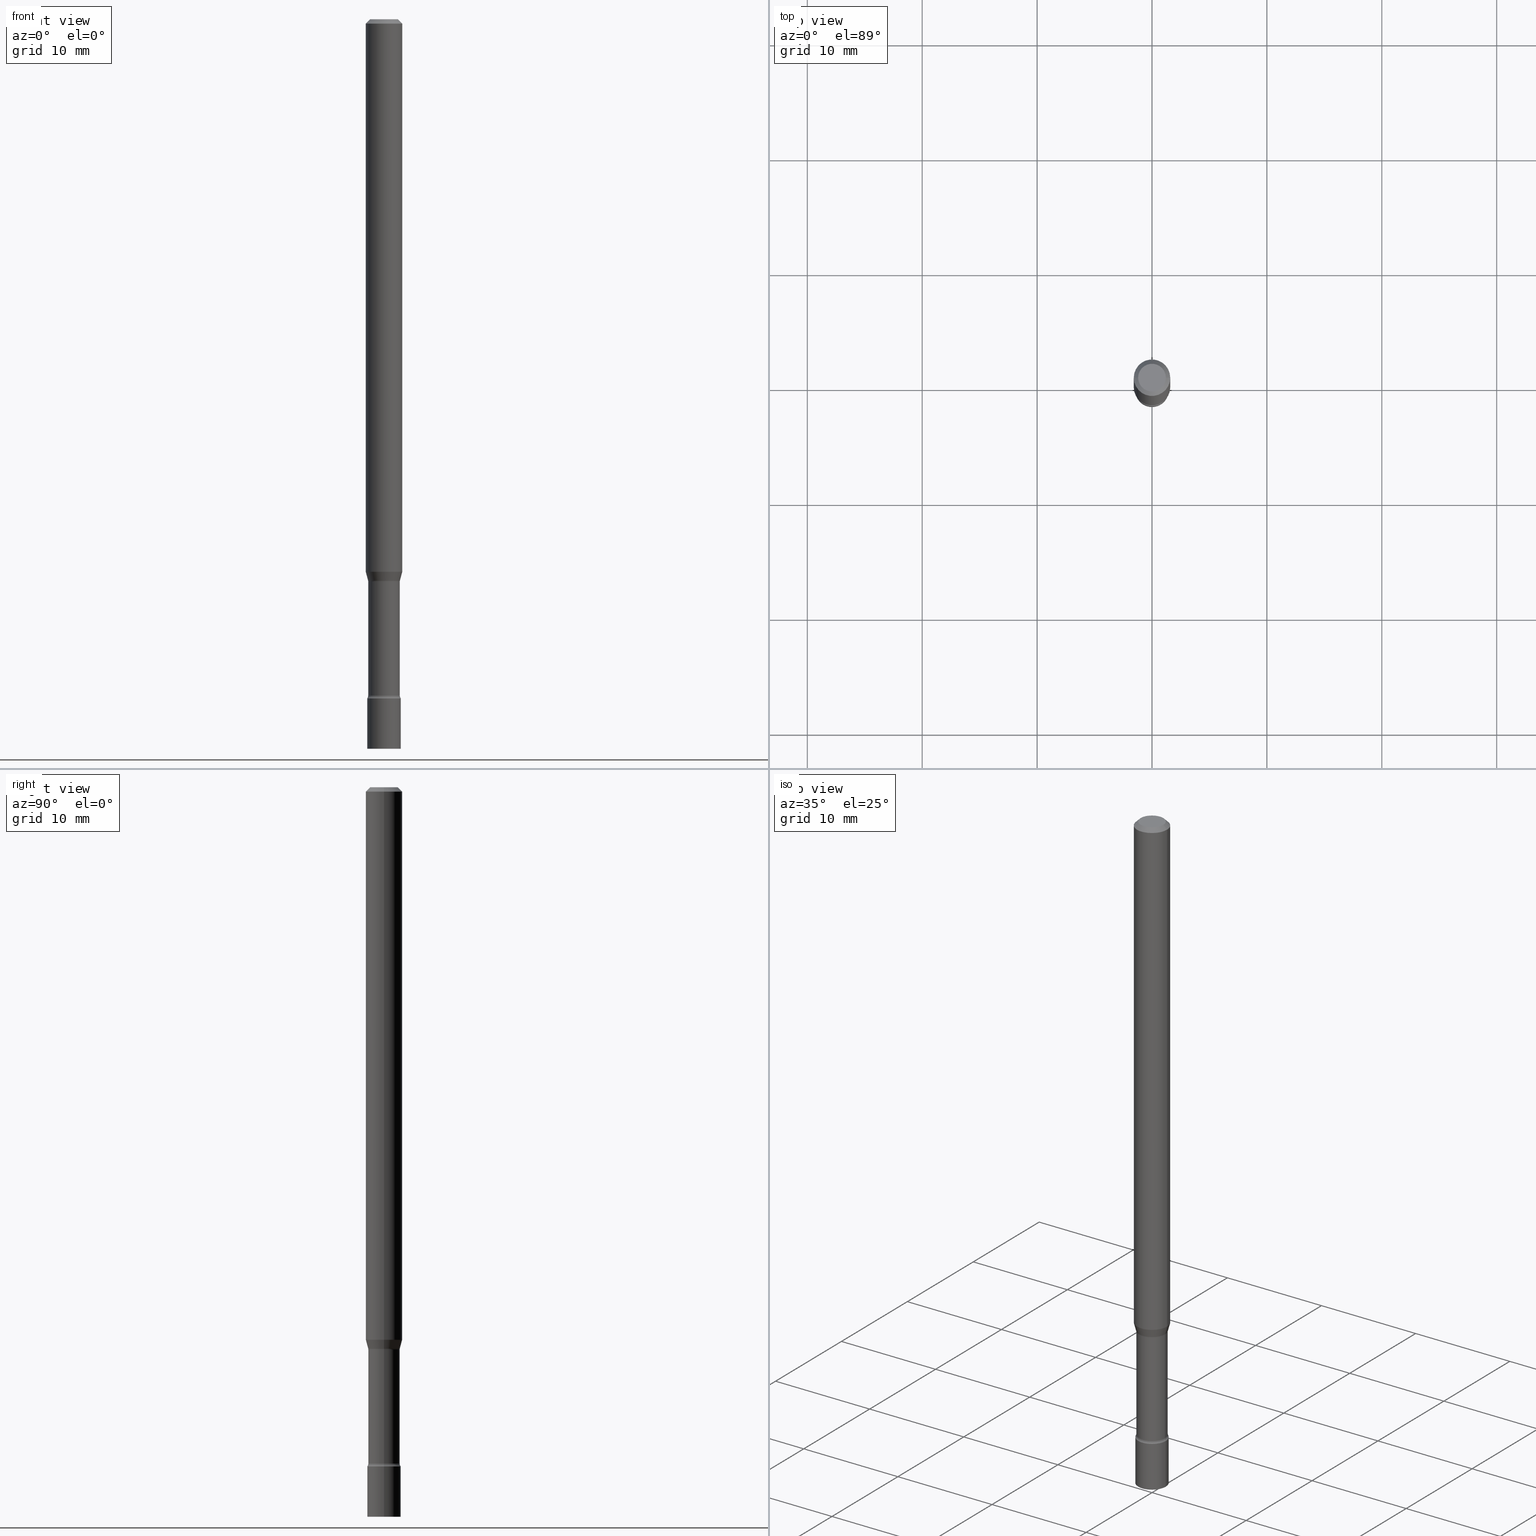
[diagram: canonical four-view strip — front | top / right | iso, engineering-drawing reading convention]
A machine part, canonical four-view strip (front | top / right | iso — engineering-drawing reading convention). The complete STEP part file that produces these views, byte-faithful:
ISO-10303-21;
HEADER;
FILE_DESCRIPTION (( 'STEP AP203' ),
    '1' );
FILE_NAME ('09775.STEP',
    '2024-03-09T01:58:50',
    ( '' ),
    ( '' ),
    'SwSTEP 2.0',
    'SolidWorks 2023',
    '' );
FILE_SCHEMA (( 'CONFIG_CONTROL_DESIGN' ));
ENDSEC;

DATA;
#1 = VERTEX_POINT ( 'NONE', #325 ) ;
#2 = AXIS2_PLACEMENT_3D ( 'NONE', #133, #139, #99 ) ;
#3 = DATE_AND_TIME ( #169, #301 ) ;
#4 = CC_DESIGN_APPROVAL ( #121, ( #246 ) ) ;
#5 = EDGE_LOOP ( 'NONE', ( #430, #248, #288, #510 ) ) ;
#6 = FACE_OUTER_BOUND ( 'NONE', #340, .T. ) ;
#7 = ORIENTED_EDGE ( 'NONE', *, *, #279, .F. ) ;
#8 = PERSON_AND_ORGANIZATION ( #491, #473 ) ;
#9 = COORDINATED_UNIVERSAL_TIME_OFFSET ( 5, 0, .BEHIND. ) ;
#10 = LOCAL_TIME ( 20, 58, 50.00000000000000000, #212 ) ;
#11 = CARTESIAN_POINT ( 'NONE',  ( 7.070806723891919892E-46, -1.009523804376275404E-31, -2.891391092786900929E-17 ) ) ;
#12 = DIRECTION ( 'NONE',  ( 1.000000000000000000, -6.982962677686269866E-15, 4.883557194083114022E-29 ) ) ;
#13 = DIRECTION ( 'NONE',  ( 1.000000000000000000, -6.982962677686265922E-15, 4.876176775795935793E-29 ) ) ;
#14 = PRODUCT ( '09775', '09775', '', ( #373 ) ) ;
#15 = APPROVAL_PERSON_ORGANIZATION ( #163, #376, #482 ) ;
#16 = CC_DESIGN_SECURITY_CLASSIFICATION ( #246, ( #136 ) ) ;
#17 = FACE_OUTER_BOUND ( 'NONE', #129, .T. ) ;
#18 = EDGE_CURVE ( 'NONE', #67, #1, #144, .T. ) ;
#19 = DIRECTION ( 'NONE',  ( 1.000000000000000000, -6.982962677686262766E-15, 0.000000000000000000 ) ) ;
#20 = DIRECTION ( 'NONE',  ( -1.000000000000000000, 6.982962677686265922E-15, -4.876176775795935793E-29 ) ) ;
#21 = ADVANCED_FACE ( 'NONE', ( #98 ), #456, .T. ) ;
#22 = DIRECTION ( 'NONE',  ( 1.000000000000000000, -6.982962677686266711E-15, 0.000000000000000000 ) ) ;
#23 = ORIENTED_EDGE ( 'NONE', *, *, #76, .F. ) ;
#24 = DIRECTION ( 'NONE',  ( -2.445468806185136597E-29, 3.491481338843145583E-15, 1.000000000000000000 ) ) ;
#25 = AXIS2_PLACEMENT_3D ( 'NONE', #285, #355, #168 ) ;
#26 = DIRECTION ( 'NONE',  ( 1.000000000000000000, -6.982962677686266711E-15, 0.000000000000000000 ) ) ;
#27 = AXIS2_PLACEMENT_3D ( 'NONE', #224, #372, #238 ) ;
#28 = PRODUCT_RELATED_PRODUCT_CATEGORY ( 'detail', '', ( #14 ) ) ;
#29 = ORIENTED_EDGE ( 'NONE', *, *, #300, .T. ) ;
#30 = CARTESIAN_POINT ( 'NONE',  ( 0.05749999999999998168, -8.526197429454959485E-15, -2.326999999999999957 ) ) ;
#31 = DIRECTION ( 'NONE',  ( -2.445468806185136597E-29, 3.491481338843145583E-15, 1.000000000000000000 ) ) ;
#32 = CARTESIAN_POINT ( 'NONE',  ( 4.015203539670214529E-16, 0.05749999999999127337, -2.500000000000000000 ) ) ;
#33 = ORIENTED_EDGE ( 'NONE', *, *, #18, .F. ) ;
#34 = ADVANCED_FACE ( 'NONE', ( #17 ), #183, .F. ) ;
#35 = EDGE_CURVE ( 'NONE', #359, #356, #108, .T. ) ;
#36 = CYLINDRICAL_SURFACE ( 'NONE', #308, 0.06250000000000000000 ) ;
#37 = AXIS2_PLACEMENT_3D ( 'NONE', #222, #464, #254 ) ;
#38 = CIRCLE ( 'NONE', #47, 0.05405000000000000082 ) ;
#39 = ORIENTED_EDGE ( 'NONE', *, *, #203, .T. ) ;
#40 = ADVANCED_FACE ( 'NONE', ( #492 ), #489, .F. ) ;
#41 = DIRECTION ( 'NONE',  ( 1.000000000000000000, -6.982962677686265922E-15, 4.883557194083113462E-29 ) ) ;
#42 = EDGE_LOOP ( 'NONE', ( #419, #201, #211, #402 ) ) ;
#43 = EDGE_CURVE ( 'NONE', #322, #349, #128, .T. ) ;
#44 = ORIENTED_EDGE ( 'NONE', *, *, #296, .F. ) ;
#45 = VERTEX_POINT ( 'NONE', #329 ) ;
#46 = VECTOR ( 'NONE', #505, 39.37007874015748143 ) ;
#47 = AXIS2_PLACEMENT_3D ( 'NONE', #107, #73, #26 ) ;
#48 = CARTESIAN_POINT ( 'NONE',  ( -0.05405000000000004939, -7.711663977217294376E-15, -2.317429341715430802 ) ) ;
#49 = ORIENTED_EDGE ( 'NONE', *, *, #490, .T. ) ;
#50 = DATE_AND_TIME ( #84, #79 ) ;
#51 = ORIENTED_EDGE ( 'NONE', *, *, #53, .F. ) ;
#52 = ADVANCED_FACE ( 'NONE', ( #409 ), #138, .T. ) ;
#53 = EDGE_CURVE ( 'NONE', #152, #205, #189, .T. ) ;
#54 = DIRECTION ( 'NONE',  ( 1.000000000000000000, -6.982962677686265922E-15, 4.876176775795935232E-29 ) ) ;
#55 = DATE_TIME_ROLE ( 'creation_date' ) ;
#56 = AXIS2_PLACEMENT_3D ( 'NONE', #125, #520, #358 ) ;
#57 = VECTOR ( 'NONE', #509, 39.37007874015748143 ) ;
#58 = DIRECTION ( 'NONE',  ( -2.445468806185136597E-29, 3.491481338843145583E-15, 1.000000000000000000 ) ) ;
#59 = FACE_OUTER_BOUND ( 'NONE', #5, .T. ) ;
#60 = PERSON_AND_ORGANIZATION_ROLE ( 'classification_officer' ) ;
#61 = EDGE_CURVE ( 'NONE', #45, #399, #435, .T. ) ;
#62 = DIRECTION ( 'NONE',  ( 1.000000000000000000, -6.982962677686266711E-15, 0.000000000000000000 ) ) ;
#63 = CIRCLE ( 'NONE', #251, 0.05750000000000000250 ) ;
#64 = CARTESIAN_POINT ( 'NONE',  ( 3.316907271900976096E-16, 0.04749999999999999362, -1.803023190589839165E-16 ) ) ;
#65 = DIRECTION ( 'NONE',  ( 1.000000000000000000, 0.000000000000000000, 0.000000000000000000 ) ) ;
#66 = EDGE_CURVE ( 'NONE', #205, #158, #269, .T. ) ;
#67 = VERTEX_POINT ( 'NONE', #381 ) ;
#68 = CYLINDRICAL_SURFACE ( 'NONE', #331, 0.06250000000000000000 ) ;
#69 = EDGE_CURVE ( 'NONE', #349, #265, #214, .T. ) ;
#70 = DIRECTION ( 'NONE',  ( 0.2588190451025204619, 1.565188264969629067E-15, 0.9659258262890684232 ) ) ;
#71 = AXIS2_PLACEMENT_3D ( 'NONE', #178, #140, #418 ) ;
#72 = CYLINDRICAL_SURFACE ( 'NONE', #369, 0.05405000000000002858 ) ;
#73 = DIRECTION ( 'NONE',  ( -2.445468806185136597E-29, 3.491481338843145583E-15, 1.000000000000000000 ) ) ;
#74 = ORIENTED_EDGE ( 'NONE', *, *, #18, .T. ) ;
#75 = LINE ( 'NONE', #113, #462 ) ;
#76 = EDGE_CURVE ( 'NONE', #356, #45, #100, .T. ) ;
#77 = DIRECTION ( 'NONE',  ( -2.445468806185136597E-29, 3.491481338843145583E-15, 1.000000000000000000 ) ) ;
#78 = FACE_OUTER_BOUND ( 'NONE', #444, .T. ) ;
#79 = LOCAL_TIME ( 20, 58, 50.00000000000000000, #488 ) ;
#80 = ORIENTED_EDGE ( 'NONE', *, *, #273, .T. ) ;
#81 = ORIENTED_EDGE ( 'NONE', *, *, #114, .F. ) ;
#82 = DIRECTION ( 'NONE',  ( -2.445468806185136597E-29, 3.491481338843145583E-15, 1.000000000000000000 ) ) ;
#83 = EDGE_LOOP ( 'NONE', ( #44, #350, #80, #161 ) ) ;
#84 = CALENDAR_DATE ( 2024, 8, 3 ) ;
#85 = AXIS2_PLACEMENT_3D ( 'NONE', #341, #508, #159 ) ;
#86 = ORIENTED_EDGE ( 'NONE', *, *, #61, .T. ) ;
#87 = FACE_OUTER_BOUND ( 'NONE', #351, .T. ) ;
#88 = VECTOR ( 'NONE', #304, 39.37007874015748143 ) ;
#89 = LINE ( 'NONE', #247, #455 ) ;
#90 = DIRECTION ( 'NONE',  ( -2.445468806185136597E-29, 3.491481338843145583E-15, 1.000000000000000000 ) ) ;
#91 = ADVANCED_FACE ( 'NONE', ( #59 ), #413, .T. ) ;
#92 = CC_DESIGN_PERSON_AND_ORGANIZATION_ASSIGNMENT ( #260, #263, ( #136 ) ) ;
#93 = ORIENTED_EDGE ( 'NONE', *, *, #96, .T. ) ;
#94 = AXIS2_PLACEMENT_3D ( 'NONE', #227, #24, #19 ) ;
#95 = AXIS2_PLACEMENT_3D ( 'NONE', #160, #195, #503 ) ;
#96 = EDGE_CURVE ( 'NONE', #119, #265, #112, .T. ) ;
#97 = CC_DESIGN_DATE_AND_TIME_ASSIGNMENT ( #3, #55, ( #466 ) ) ;
#98 = FACE_OUTER_BOUND ( 'NONE', #122, .T. ) ;
#99 = DIRECTION ( 'NONE',  ( 1.000000000000000000, -6.982962677686265922E-15, 4.883557194083113462E-29 ) ) ;
#100 = LINE ( 'NONE', #338, #46 ) ;
#101 = CARTESIAN_POINT ( 'NONE',  ( 4.630407565017472543E-29, -6.610994817683517532E-15, -1.893464170676043112 ) ) ;
#102 = EDGE_CURVE ( 'NONE', #119, #479, #164, .T. ) ;
#103 = EDGE_LOOP ( 'NONE', ( #438, #240 ) ) ;
#104 = EDGE_CURVE ( 'NONE', #399, #45, #407, .T. ) ;
#105 = DIRECTION ( 'NONE',  ( 2.438088387897960049E-29, -3.491481338843145188E-15, -1.000000000000000000 ) ) ;
#106 = CARTESIAN_POINT ( 'NONE',  ( 0.000000000000000000, 0.000000000000000000, 0.000000000000000000 ) ) ;
#107 = CARTESIAN_POINT ( 'NONE',  ( 4.712356733047983098E-29, -6.727996510851133099E-15, -1.926974787463811012 ) ) ;
#108 = CIRCLE ( 'NONE', #94, 0.06250000000000000000 ) ;
#109 = DIRECTION ( 'NONE',  ( -0.7071067811865475727, 2.468850131082257455E-15, -0.7071067811865474617 ) ) ;
#110 = AXIS2_PLACEMENT_3D ( 'NONE', #277, #217, #443 ) ;
#111 = VERTEX_POINT ( 'NONE', #320 ) ;
#112 = LINE ( 'NONE', #516, #286 ) ;
#113 = CARTESIAN_POINT ( 'NONE',  ( -0.05456111260566398613, -6.326761560690008742E-15, -1.923092501787273090 ) ) ;
#114 = EDGE_CURVE ( 'NONE', #1, #67, #353, .T. ) ;
#115 = DIRECTION ( 'NONE',  ( -2.445468806185136597E-29, 3.491481338843145583E-15, 1.000000000000000000 ) ) ;
#116 = ORIENTED_EDGE ( 'NONE', *, *, #336, .F. ) ;
#117 = CARTESIAN_POINT ( 'NONE',  ( 3.668203209277712094E-31, -5.237222008264728876E-17, -0.01500000000000003067 ) ) ;
#118 = CIRCLE ( 'NONE', #110, 0.01499999999999995955 ) ;
#119 = VERTEX_POINT ( 'NONE', #206 ) ;
#120 = SHAPE_DEFINITION_REPRESENTATION ( #327, #513 ) ;
#121 = APPROVAL ( #461, 'UNSPECIFIED' ) ;
#122 = EDGE_LOOP ( 'NONE', ( #434, #472 ) ) ;
#123 = CC_DESIGN_PERSON_AND_ORGANIZATION_ASSIGNMENT ( #299, #352, ( #14 ) ) ;
#124 = ORIENTED_EDGE ( 'NONE', *, *, #61, .F. ) ;
#125 = CARTESIAN_POINT ( 'NONE',  ( 5.667201165703240905E-29, -8.091261300686981315E-15, -2.317429341715430802 ) ) ;
#126 = EDGE_CURVE ( 'NONE', #111, #265, #135, .T. ) ;
#127 = CC_DESIGN_PERSON_AND_ORGANIZATION_ASSIGNMENT ( #441, #485, ( #466 ) ) ;
#128 = CIRCLE ( 'NONE', #175, 0.05456111260566398613 ) ;
#129 = EDGE_LOOP ( 'NONE', ( #306, #303 ) ) ;
#130 = DIRECTION ( 'NONE',  ( -2.445468806185136597E-29, 3.491481338843145583E-15, 1.000000000000000000 ) ) ;
#131 = DIRECTION ( 'NONE',  ( 1.000000000000000000, -6.982962677686269866E-15, 4.883557194083114022E-29 ) ) ;
#132 = EDGE_CURVE ( 'NONE', #479, #111, #89, .T. ) ;
#133 = CARTESIAN_POINT ( 'NONE',  ( 4.712356733047983098E-29, -6.727996510851133099E-15, -1.926974787463811012 ) ) ;
#134 = CC_DESIGN_PERSON_AND_ORGANIZATION_ASSIGNMENT ( #216, #60, ( #246 ) ) ;
#135 = CIRCLE ( 'NONE', #25, 0.05405000000000000082 ) ;
#136 = PRODUCT_DEFINITION_FORMATION_WITH_SPECIFIED_SOURCE ( 'ANY', '', #14, .NOT_KNOWN. ) ;
#137 = ADVANCED_FACE ( 'NONE', ( #374 ), #68, .T. ) ;
#138 = CYLINDRICAL_SURFACE ( 'NONE', #314, 0.05750000000000000250 ) ;
#139 = DIRECTION ( 'NONE',  ( -2.445468806185136597E-29, 3.491481338843145583E-15, 1.000000000000000000 ) ) ;
#140 = DIRECTION ( 'NONE',  ( -2.445468806185136597E-29, 3.491481338843145583E-15, 1.000000000000000000 ) ) ;
#141 = DIRECTION ( 'NONE',  ( -1.000000000000000000, 6.982962677686266711E-15, 0.000000000000000000 ) ) ;
#142 = CARTESIAN_POINT ( 'NONE',  ( 0.000000000000000000, 0.000000000000000000, 0.000000000000000000 ) ) ;
#143 = CARTESIAN_POINT ( 'NONE',  ( 3.668203209277712094E-31, -5.237222008264728876E-17, -0.01500000000000003067 ) ) ;
#144 = CIRCLE ( 'NONE', #198, 0.04749999999999999362 ) ;
#145 = CC_DESIGN_APPROVAL ( #376, ( #136 ) ) ;
#146 = LINE ( 'NONE', #302, #481 ) ;
#147 = EDGE_LOOP ( 'NONE', ( #486, #49, #124, #23 ) ) ;
#148 = CARTESIAN_POINT ( 'NONE',  ( 0.05405000000000000082, -7.105425643580075581E-15, -1.926974787463811012 ) ) ;
#149 = VERTEX_POINT ( 'NONE', #30 ) ;
#150 = EDGE_CURVE ( 'NONE', #349, #322, #179, .T. ) ;
#151 = FACE_OUTER_BOUND ( 'NONE', #213, .T. ) ;
#152 = VERTEX_POINT ( 'NONE', #283 ) ;
#153 = COORDINATED_UNIVERSAL_TIME_OFFSET ( 5, 0, .BEHIND. ) ;
#154 = ADVANCED_FACE ( 'NONE', ( #313 ), #440, .F. ) ;
#155 = AXIS2_PLACEMENT_3D ( 'NONE', #360, #82, #398 ) ;
#156 = DIRECTION ( 'NONE',  ( 1.000000000000000000, -6.982962677686266711E-15, 4.876176775795935793E-29 ) ) ;
#157 = CONICAL_SURFACE ( 'NONE', #221, 0.05456111260566398613, 0.2617993877991491303 ) ;
#158 = VERTEX_POINT ( 'NONE', #450 ) ;
#159 = DIRECTION ( 'NONE',  ( 1.000000000000000000, -6.982962677686266711E-15, 0.000000000000000000 ) ) ;
#160 = CARTESIAN_POINT ( 'NONE',  ( 6.113672015462842613E-29, -8.728703347107864943E-15, -2.500000000000000000 ) ) ;
#161 = ORIENTED_EDGE ( 'NONE', *, *, #35, .F. ) ;
#162 = ORIENTED_EDGE ( 'NONE', *, *, #417, .F. ) ;
#163 = PERSON_AND_ORGANIZATION ( #491, #473 ) ;
#164 = CIRCLE ( 'NONE', #56, 0.05405000000000004939 ) ;
#165 = CIRCLE ( 'NONE', #448, 0.06250000000000000000 ) ;
#166 = ORIENTED_EDGE ( 'NONE', *, *, #405, .T. ) ;
#167 = APPROVAL_DATE_TIME ( #50, #376 ) ;
#168 = DIRECTION ( 'NONE',  ( 1.000000000000000000, -6.982962677686266711E-15, 0.000000000000000000 ) ) ;
#169 = CALENDAR_DATE ( 2024, 8, 3 ) ;
#170 = DIRECTION ( 'NONE',  ( 1.000000000000000000, -6.982962677686266711E-15, 0.000000000000000000 ) ) ;
#171 = CARTESIAN_POINT ( 'NONE',  ( -0.05749999999999998168, -7.716115002425941100E-15, -2.326999999999999957 ) ) ;
#172 = CARTESIAN_POINT ( 'NONE',  ( 5.690605911992812897E-29, -8.124677075487999464E-15, -2.326999999999999957 ) ) ;
#173 = ORIENTED_EDGE ( 'NONE', *, *, #104, .F. ) ;
#174 = COORDINATED_UNIVERSAL_TIME_OFFSET ( 5, 0, .BEHIND. ) ;
#175 = AXIS2_PLACEMENT_3D ( 'NONE', #252, #186, #62 ) ;
#176 = DATE_TIME_ROLE ( 'classification_date' ) ;
#177 = CARTESIAN_POINT ( 'NONE',  ( 5.667201165703240905E-29, -8.091261300686981315E-15, -2.317429341715430802 ) ) ;
#178 = CARTESIAN_POINT ( 'NONE',  ( 5.690605911992812897E-29, -8.124677075487999464E-15, -2.326999999999999957 ) ) ;
#179 = CIRCLE ( 'NONE', #85, 0.05456111260566398613 ) ;
#180 = CC_DESIGN_APPROVAL ( #280, ( #466 ) ) ;
#181 = DIRECTION ( 'NONE',  ( 1.000000000000000000, -6.982962677686265922E-15, 4.876176775795935232E-29 ) ) ;
#182 = DIRECTION ( 'NONE',  ( -2.445468806185136597E-29, 3.491481338843145583E-15, 1.000000000000000000 ) ) ;
#183 = PLANE ( 'NONE',  #37 ) ;
#184 = EDGE_CURVE ( 'NONE', #119, #149, #427, .T. ) ;
#185 = CC_DESIGN_PERSON_AND_ORGANIZATION_ASSIGNMENT ( #404, #318, ( #136 ) ) ;
#186 = DIRECTION ( 'NONE',  ( -2.445468806185136597E-29, 3.491481338843145583E-15, 1.000000000000000000 ) ) ;
#187 = CARTESIAN_POINT ( 'NONE',  ( 0.06905000000000000027, -7.210170083745370528E-15, -1.926974787463811012 ) ) ;
#188 = AXIS2_PLACEMENT_3D ( 'NONE', #117, #442, #170 ) ;
#189 = LINE ( 'NONE', #256, #367 ) ;
#190 = CONICAL_SURFACE ( 'NONE', #199, 0.06250000000000000000, 0.7853981633974483900 ) ;
#191 = DIRECTION ( 'NONE',  ( -2.445468806185136597E-29, 3.491481338843145583E-15, 1.000000000000000000 ) ) ;
#192 = LENGTH_MEASURE_WITH_UNIT ( LENGTH_MEASURE( 0.02539999999999999897 ), #422 );
#193 = ADVANCED_FACE ( 'NONE', ( #87 ), #220, .T. ) ;
#194 = ORIENTED_EDGE ( 'NONE', *, *, #241, .T. ) ;
#195 = DIRECTION ( 'NONE',  ( -2.445468806185136597E-29, 3.491481338843145583E-15, 1.000000000000000000 ) ) ;
#196 = EDGE_LOOP ( 'NONE', ( #507, #81, #166, #416 ) ) ;
#197 = CARTESIAN_POINT ( 'NONE',  ( 0.05750000000000000250, -9.130223701074824963E-15, -2.500000000000000000 ) ) ;
#198 = AXIS2_PLACEMENT_3D ( 'NONE', #11, #58, #328 ) ;
#199 = AXIS2_PLACEMENT_3D ( 'NONE', #339, #465, #475 ) ;
#200 = CARTESIAN_POINT ( 'NONE',  ( -0.05456111260566398613, -6.246833584261731829E-15, -1.923092501787273090 ) ) ;
#201 = ORIENTED_EDGE ( 'NONE', *, *, #102, .F. ) ;
#202 = LINE ( 'NONE', #514, #237 ) ;
#203 = EDGE_CURVE ( 'NONE', #439, #149, #446, .T. ) ;
#204 = ORIENTED_EDGE ( 'NONE', *, *, #273, .F. ) ;
#205 = VERTEX_POINT ( 'NONE', #330 ) ;
#206 = CARTESIAN_POINT ( 'NONE',  ( 0.05405000000000004939, -8.468690433415923797E-15, -2.317429341715430802 ) ) ;
#207 = DIRECTION ( 'NONE',  ( -2.445468806185136597E-29, 3.491481338843145583E-15, 1.000000000000000000 ) ) ;
#208 = CLOSED_SHELL ( 'NONE', ( #459, #91, #477, #193, #137, #437, #210, #259, #361, #154, #34, #40, #375, #250 ) ) ;
#209 = TOROIDAL_SURFACE ( 'NONE', #276, 0.06905000000000000027, 0.01500000000000002373 ) ;
#210 = ADVANCED_FACE ( 'NONE', ( #297 ), #157, .T. ) ;
#211 = ORIENTED_EDGE ( 'NONE', *, *, #184, .T. ) ;
#212 = COORDINATED_UNIVERSAL_TIME_OFFSET ( 5, 0, .BEHIND. ) ;
#213 = EDGE_LOOP ( 'NONE', ( #226, #284, #515, #282 ) ) ;
#214 = CIRCLE ( 'NONE', #502, 0.01500000000000001853 ) ;
#215 = CIRCLE ( 'NONE', #332, 0.05750000000000000250 ) ;
#216 = PERSON_AND_ORGANIZATION ( #491, #473 ) ;
#217 = DIRECTION ( 'NONE',  ( 7.105427357601001859E-15, 1.000000000000000000, -3.491481338843145583E-15 ) ) ;
#218 = EDGE_LOOP ( 'NONE', ( #234, #74 ) ) ;
#219 = EDGE_CURVE ( 'NONE', #356, #359, #165, .T. ) ;
#220 = CONICAL_SURFACE ( 'NONE', #494, 0.06250000000000000000, 0.7853981633974483900 ) ;
#221 = AXIS2_PLACEMENT_3D ( 'NONE', #495, #460, #22 ) ;
#222 = CARTESIAN_POINT ( 'NONE',  ( 4.015203539670172127E-16, 0.05749999999999187705, -2.327000000000000401 ) ) ;
#223 = APPROVAL_PERSON_ORGANIZATION ( #236, #121, #499 ) ;
#224 = CARTESIAN_POINT ( 'NONE',  ( -0.06905000000000000027, -6.237366751808783524E-15, -1.926974787463811012 ) ) ;
#225 = CARTESIAN_POINT ( 'NONE',  ( -0.06250000000000000000, 4.440892098500626162E-16, -3.074334431409316114E-30 ) ) ;
#226 = ORIENTED_EDGE ( 'NONE', *, *, #241, .F. ) ;
#227 = CARTESIAN_POINT ( 'NONE',  ( 4.630407565017472543E-29, -6.610994817683517532E-15, -1.893464170676043112 ) ) ;
#228 = CARTESIAN_POINT ( 'NONE',  ( 0.05750000000000000250, -4.015203539669603161E-16, 2.803801646082662941E-30 ) ) ;
#229 = DIRECTION ( 'NONE',  ( 1.000000000000000000, -6.982962677686266711E-15, 4.876176775795935793E-29 ) ) ;
#230 = CLOSED_SHELL ( 'NONE', ( #52, #21, #432, #425 ) ) ;
#231 = CARTESIAN_POINT ( 'NONE',  ( 0.000000000000000000, 0.000000000000000000, 0.000000000000000000 ) ) ;
#232 = EDGE_LOOP ( 'NONE', ( #487, #194, #412, #391 ) ) ;
#233 = CARTESIAN_POINT ( 'NONE',  ( -0.06250000000000000000, -2.887594309033019887E-15, -0.01500000000000003067 ) ) ;
#234 = ORIENTED_EDGE ( 'NONE', *, *, #114, .T. ) ;
#235 = CARTESIAN_POINT ( 'NONE',  ( 0.000000000000000000, 0.000000000000000000, 0.000000000000000000 ) ) ;
#236 = PERSON_AND_ORGANIZATION ( #491, #473 ) ;
#237 = VECTOR ( 'NONE', #70, 39.37007874015748854 ) ;
#238 = DIRECTION ( 'NONE',  ( -1.000000000000000000, 7.105427357600982137E-15, 0.000000000000000000 ) ) ;
#239 = ORIENTED_EDGE ( 'NONE', *, *, #66, .F. ) ;
#240 = ORIENTED_EDGE ( 'NONE', *, *, #378, .F. ) ;
#241 = EDGE_CURVE ( 'NONE', #322, #111, #512, .T. ) ;
#242 = ORIENTED_EDGE ( 'NONE', *, *, #126, .F. ) ;
#243 = VECTOR ( 'NONE', #262, 39.37007874015748143 ) ;
#244 = FACE_OUTER_BOUND ( 'NONE', #362, .T. ) ;
#245 = ORIENTED_EDGE ( 'NONE', *, *, #290, .T. ) ;
#246 = SECURITY_CLASSIFICATION ( '', '', #496 ) ;
#247 = CARTESIAN_POINT ( 'NONE',  ( -0.05405000000000002858, 3.840483486783343535E-16, -2.658684416282777892E-30 ) ) ;
#248 = ORIENTED_EDGE ( 'NONE', *, *, #132, .T. ) ;
#249 = APPROVAL_ROLE ( '' ) ;
#250 = ADVANCED_FACE ( 'NONE', ( #151 ), #209, .F. ) ;
#251 = AXIS2_PLACEMENT_3D ( 'NONE', #271, #115, #386 ) ;
#252 = CARTESIAN_POINT ( 'NONE',  ( 4.702862724529310915E-29, -6.714441582859442512E-15, -1.923092501787273090 ) ) ;
#253 = CARTESIAN_POINT ( 'NONE',  ( 5.690605911992812897E-29, -8.124677075487999464E-15, -2.326999999999999957 ) ) ;
#254 = DIRECTION ( 'NONE',  ( 1.000000000000000000, -6.982962677686265922E-15, 4.876176775795935793E-29 ) ) ;
#255 = DIRECTION ( 'NONE',  ( -6.982962677686266711E-15, -1.000000000000000000, 3.491481338843145583E-15 ) ) ;
#256 = CARTESIAN_POINT ( 'NONE',  ( -0.05750000000000000250, 4.085620730620576246E-16, -2.828387676896570712E-30 ) ) ;
#257 = DIRECTION ( 'NONE',  ( -2.445468806185136597E-29, 3.491481338843145583E-15, 1.000000000000000000 ) ) ;
#258 = ORIENTED_EDGE ( 'NONE', *, *, #279, .T. ) ;
#259 = ADVANCED_FACE ( 'NONE', ( #390 ), #36, .T. ) ;
#260 = PERSON_AND_ORGANIZATION ( #491, #473 ) ;
#261 = AXIS2_PLACEMENT_3D ( 'NONE', #32, #105, #433 ) ;
#262 = DIRECTION ( 'NONE',  ( -2.445468806185136877E-29, 3.491481338843145188E-15, 1.000000000000000000 ) ) ;
#263 = PERSON_AND_ORGANIZATION_ROLE ( 'design_supplier' ) ;
#264 = CYLINDRICAL_SURFACE ( 'NONE', #324, 0.05750000000000000250 ) ;
#265 = VERTEX_POINT ( 'NONE', #148 ) ;
#266 = CARTESIAN_POINT ( 'NONE',  ( 0.06250000000000000000, -7.047429985038908412E-15, -1.893464170676043112 ) ) ;
#267 =( NAMED_UNIT ( * ) PLANE_ANGLE_UNIT ( ) SI_UNIT ( $, .RADIAN. ) );
#268 = DIRECTION ( 'NONE',  ( -2.445468806185136877E-29, 3.491481338843145188E-15, 1.000000000000000000 ) ) ;
#269 = CIRCLE ( 'NONE', #71, 0.05750000000000000250 ) ;
#270 = AXIS2_PLACEMENT_3D ( 'NONE', #468, #421, #309 ) ;
#271 = CARTESIAN_POINT ( 'NONE',  ( 5.690605911992812897E-29, -8.124677075487999464E-15, -2.326999999999999957 ) ) ;
#272 = LINE ( 'NONE', #228, #57 ) ;
#273 = EDGE_CURVE ( 'NONE', #349, #356, #202, .T. ) ;
#274 = FACE_OUTER_BOUND ( 'NONE', #103, .T. ) ;
#275 = ORIENTED_EDGE ( 'NONE', *, *, #490, .F. ) ;
#276 = AXIS2_PLACEMENT_3D ( 'NONE', #511, #342, #41 ) ;
#277 = CARTESIAN_POINT ( 'NONE',  ( -0.06905000000000001414, -7.600631541644631740E-15, -2.317429341715430802 ) ) ;
#278 = ORIENTED_EDGE ( 'NONE', *, *, #296, .T. ) ;
#279 = EDGE_CURVE ( 'NONE', #312, #158, #272, .T. ) ;
#280 = APPROVAL ( #400, 'UNSPECIFIED' ) ;
#281 = CARTESIAN_POINT ( 'NONE',  ( 7.070806723891919892E-46, -1.009523804376275404E-31, -2.891391092786900929E-17 ) ) ;
#282 = ORIENTED_EDGE ( 'NONE', *, *, #344, .T. ) ;
#283 = CARTESIAN_POINT ( 'NONE',  ( -0.05750000000000000250, -8.018128138235874628E-15, -2.500000000000000000 ) ) ;
#284 = ORIENTED_EDGE ( 'NONE', *, *, #150, .F. ) ;
#285 = CARTESIAN_POINT ( 'NONE',  ( 4.712356733047983098E-29, -6.727996510851133099E-15, -1.926974787463811012 ) ) ;
#286 = VECTOR ( 'NONE', #268, 39.37007874015748143 ) ;
#287 = TOROIDAL_SURFACE ( 'NONE', #2, 0.06905000000000000027, 0.01500000000000002373 ) ;
#288 = ORIENTED_EDGE ( 'NONE', *, *, #344, .F. ) ;
#289 = DIRECTION ( 'NONE',  ( 2.438088387897960049E-29, -3.491481338843145188E-15, -1.000000000000000000 ) ) ;
#290 = EDGE_CURVE ( 'NONE', #312, #152, #315, .T. ) ;
#291 = DIRECTION ( 'NONE',  ( -2.445468806185136597E-29, 3.491481338843145583E-15, 1.000000000000000000 ) ) ;
#292 = CONICAL_SURFACE ( 'NONE', #155, 0.05456111260566398613, 0.2617993877991491303 ) ;
#293 = LOCAL_TIME ( 20, 58, 50.00000000000000000, #9 ) ;
#294 = APPLICATION_PROTOCOL_DEFINITION ( 'international standard', 'config_control_design', 1994, #424 ) ;
#295 = DIRECTION ( 'NONE',  ( -6.982962677686266711E-15, -1.000000000000000000, 3.491481338843145583E-15 ) ) ;
#296 = EDGE_CURVE ( 'NONE', #322, #359, #75, .T. ) ;
#297 = FACE_OUTER_BOUND ( 'NONE', #83, .T. ) ;
#298 = DIRECTION ( 'NONE',  ( 0.000000000000000000, 0.000000000000000000, 1.000000000000000000 ) ) ;
#299 = PERSON_AND_ORGANIZATION ( #491, #473 ) ;
#300 = EDGE_CURVE ( 'NONE', #67, #45, #382, .T. ) ;
#301 = LOCAL_TIME ( 20, 58, 50.00000000000000000, #174 ) ;
#302 = CARTESIAN_POINT ( 'NONE',  ( -0.06250000000000000000, 3.840629472727443437E-16, -0.01500000000000003067 ) ) ;
#303 = ORIENTED_EDGE ( 'NONE', *, *, #203, .F. ) ;
#304 = DIRECTION ( 'NONE',  ( 0.7071067811865475727, -7.319954787623256045E-15, -0.7071067811865474617 ) ) ;
#305 = CARTESIAN_POINT ( 'NONE',  ( 6.113672015462842613E-29, -8.728703347107864943E-15, -2.500000000000000000 ) ) ;
#306 = ORIENTED_EDGE ( 'NONE', *, *, #484, .F. ) ;
#307 = DATE_AND_TIME ( #387, #370 ) ;
#308 = AXIS2_PLACEMENT_3D ( 'NONE', #235, #426, #156 ) ;
#309 = DIRECTION ( 'NONE',  ( 1.000000000000000000, -6.982962677686260400E-15, 0.000000000000000000 ) ) ;
#310 = DIRECTION ( 'NONE',  ( 1.000000000000000000, -6.982962677686256455E-15, 0.000000000000000000 ) ) ;
#311 = ORIENTED_EDGE ( 'NONE', *, *, #219, .F. ) ;
#312 = VERTEX_POINT ( 'NONE', #197 ) ;
#313 = FACE_OUTER_BOUND ( 'NONE', #218, .T. ) ;
#314 = AXIS2_PLACEMENT_3D ( 'NONE', #334, #377, #181 ) ;
#315 = CIRCLE ( 'NONE', #95, 0.05750000000000000250 ) ;
#316 = CARTESIAN_POINT ( 'NONE',  ( 0.000000000000000000, 0.000000000000000000, 0.000000000000000000 ) ) ;
#317 = EDGE_LOOP ( 'NONE', ( #518, #483, #93, #242 ) ) ;
#318 = PERSON_AND_ORGANIZATION_ROLE ( 'creator' ) ;
#319 = ORIENTED_EDGE ( 'NONE', *, *, #184, .F. ) ;
#320 = CARTESIAN_POINT ( 'NONE',  ( -0.05405000000000000082, -7.025580557090721966E-15, -1.926974787463811012 ) ) ;
#321 = FACE_OUTER_BOUND ( 'NONE', #232, .T. ) ;
#322 = VERTEX_POINT ( 'NONE', #200 ) ;
#323 = APPROVAL_STATUS ( 'not_yet_approved' ) ;
#324 = AXIS2_PLACEMENT_3D ( 'NONE', #316, #207, #54 ) ;
#325 = CARTESIAN_POINT ( 'NONE',  ( -0.04749999999999999362, 3.578768372314209027E-16, -2.891391092787141902E-17 ) ) ;
#326 = DIRECTION ( 'NONE',  ( 1.000000000000000000, -6.982962677686266711E-15, 4.876176775795935232E-29 ) ) ;
#327 = PRODUCT_DEFINITION_SHAPE ( 'NONE', 'NONE',  #466 ) ;
#328 = DIRECTION ( 'NONE',  ( 1.000000000000000000, -6.982962677686267499E-15, 4.876681293081646444E-29 ) ) ;
#329 = CARTESIAN_POINT ( 'NONE',  ( 0.06250000000000000000, -4.888073874380389458E-16, -0.01500000000000003067 ) ) ;
#330 = CARTESIAN_POINT ( 'NONE',  ( -0.05750000000000000250, -8.018128138235874628E-15, -2.326999999999999957 ) ) ;
#331 = AXIS2_PLACEMENT_3D ( 'NONE', #106, #423, #229 ) ;
#332 = AXIS2_PLACEMENT_3D ( 'NONE', #305, #191, #310 ) ;
#333 = DIRECTION ( 'NONE',  ( -2.445468806185136877E-29, 3.491481338843145188E-15, 1.000000000000000000 ) ) ;
#334 = CARTESIAN_POINT ( 'NONE',  ( 0.000000000000000000, 0.000000000000000000, 0.000000000000000000 ) ) ;
#335 = MANIFOLD_SOLID_BREP ( 'Body-Move/Copy2[2]', #208 ) ;
#336 = EDGE_CURVE ( 'NONE', #479, #119, #436, .T. ) ;
#337 = AXIS2_PLACEMENT_3D ( 'NONE', #364, #130, #326 ) ;
#338 = CARTESIAN_POINT ( 'NONE',  ( 0.06250000000000000000, -4.364351673553916694E-16, 3.047610484872459871E-30 ) ) ;
#339 = CARTESIAN_POINT ( 'NONE',  ( 3.668203209277712094E-31, -5.237222008264728876E-17, -0.01500000000000003067 ) ) ;
#340 = EDGE_LOOP ( 'NONE', ( #368, #278, #311, #204 ) ) ;
#341 = CARTESIAN_POINT ( 'NONE',  ( 4.702862724529310915E-29, -6.714441582859442512E-15, -1.923092501787273090 ) ) ;
#342 = DIRECTION ( 'NONE',  ( -2.445468806185136597E-29, 3.491481338843145583E-15, 1.000000000000000000 ) ) ;
#343 =( NAMED_UNIT ( * ) SI_UNIT ( $, .STERADIAN. ) SOLID_ANGLE_UNIT ( ) );
#344 = EDGE_CURVE ( 'NONE', #265, #111, #38, .T. ) ;
#345 = CARTESIAN_POINT ( 'NONE',  ( -0.06250000000000000000, -6.166905607833454916E-15, -1.893464170676043112 ) ) ;
#346 = ORIENTED_EDGE ( 'NONE', *, *, #76, .T. ) ;
#347 = AXIS2_PLACEMENT_3D ( 'NONE', #172, #90, #401 ) ;
#348 = DIRECTION ( 'NONE',  ( 1.000000000000000000, -6.982962677686266711E-15, 4.876176775795935232E-29 ) ) ;
#349 = VERTEX_POINT ( 'NONE', #431 ) ;
#350 = ORIENTED_EDGE ( 'NONE', *, *, #43, .T. ) ;
#351 = EDGE_LOOP ( 'NONE', ( #33, #29, #86, #393 ) ) ;
#352 = PERSON_AND_ORGANIZATION_ROLE ( 'design_owner' ) ;
#353 = CIRCLE ( 'NONE', #480, 0.04749999999999999362 ) ;
#354 = APPROVAL_PERSON_ORGANIZATION ( #8, #280, #249 ) ;
#355 = DIRECTION ( 'NONE',  ( -2.445468806185136597E-29, 3.491481338843145583E-15, 1.000000000000000000 ) ) ;
#356 = VERTEX_POINT ( 'NONE', #266 ) ;
#357 = CALENDAR_DATE ( 2024, 8, 3 ) ;
#358 = DIRECTION ( 'NONE',  ( 1.000000000000000000, -6.982962677686260400E-15, 0.000000000000000000 ) ) ;
#359 = VERTEX_POINT ( 'NONE', #345 ) ;
#360 = CARTESIAN_POINT ( 'NONE',  ( 4.702862724529310915E-29, -6.714441582859442512E-15, -1.923092501787273090 ) ) ;
#361 = ADVANCED_FACE ( 'NONE', ( #476 ), #190, .T. ) ;
#362 = EDGE_LOOP ( 'NONE', ( #116, #380, #39, #319 ) ) ;
#363 = DATE_AND_TIME ( #451, #293 ) ;
#364 = CARTESIAN_POINT ( 'NONE',  ( 0.000000000000000000, 0.000000000000000000, 0.000000000000000000 ) ) ;
#365 = DIMENSIONAL_EXPONENTS ( 1.000000000000000000, 0.000000000000000000, 0.000000000000000000, 0.000000000000000000, 0.000000000000000000, 0.000000000000000000, 0.000000000000000000 ) ;
#366 = DIRECTION ( 'NONE',  ( -2.438088387897960049E-29, 3.491481338843145188E-15, 1.000000000000000000 ) ) ;
#367 = VECTOR ( 'NONE', #333, 39.37007874015748143 ) ;
#368 = ORIENTED_EDGE ( 'NONE', *, *, #150, .T. ) ;
#369 = AXIS2_PLACEMENT_3D ( 'NONE', #231, #31, #348 ) ;
#370 = LOCAL_TIME ( 20, 58, 50.00000000000000000, #153 ) ;
#371 = DIRECTION ( 'NONE',  ( -2.445468806185136597E-29, 3.491481338843145583E-15, 1.000000000000000000 ) ) ;
#372 = DIRECTION ( 'NONE',  ( 7.105427357601001859E-15, 1.000000000000000000, -3.491481338843145583E-15 ) ) ;
#373 = MECHANICAL_CONTEXT ( 'NONE', #424, 'mechanical' ) ;
#374 = FACE_OUTER_BOUND ( 'NONE', #147, .T. ) ;
#375 = ADVANCED_FACE ( 'NONE', ( #388 ), #72, .T. ) ;
#376 = APPROVAL ( #323, 'UNSPECIFIED' ) ;
#377 = DIRECTION ( 'NONE',  ( -2.445468806185136597E-29, 3.491481338843145583E-15, 1.000000000000000000 ) ) ;
#378 = EDGE_CURVE ( 'NONE', #152, #312, #215, .T. ) ;
#379 = CARTESIAN_POINT ( 'NONE',  ( 3.668203209277712094E-31, -5.237222008264728876E-17, -0.01500000000000003067 ) ) ;
#380 = ORIENTED_EDGE ( 'NONE', *, *, #463, .T. ) ;
#381 = CARTESIAN_POINT ( 'NONE',  ( 0.04749999999999999362, -4.035134999187579609E-16, -2.891391092786643933E-17 ) ) ;
#382 = LINE ( 'NONE', #506, #88 ) ;
#383 =( CONVERSION_BASED_UNIT ( 'INCH', #192 ) LENGTH_UNIT ( ) NAMED_UNIT ( #365 ) );
#384 = AXIS2_PLACEMENT_3D ( 'NONE', #143, #420, #498 ) ;
#385 = ORIENTED_EDGE ( 'NONE', *, *, #378, .T. ) ;
#386 = DIRECTION ( 'NONE',  ( 1.000000000000000000, -6.982962677686273810E-15, 0.000000000000000000 ) ) ;
#387 = CALENDAR_DATE ( 2024, 8, 3 ) ;
#388 = FACE_OUTER_BOUND ( 'NONE', #317, .T. ) ;
#389 = AXIS2_PLACEMENT_3D ( 'NONE', #142, #298, #65 ) ;
#390 = FACE_OUTER_BOUND ( 'NONE', #449, .T. ) ;
#391 = ORIENTED_EDGE ( 'NONE', *, *, #69, .F. ) ;
#392 = CC_DESIGN_DATE_AND_TIME_ASSIGNMENT ( #363, #176, ( #246 ) ) ;
#393 = ORIENTED_EDGE ( 'NONE', *, *, #405, .F. ) ;
#394 = DIRECTION ( 'NONE',  ( 1.000000000000000000, -6.982962677686267499E-15, 4.876681293081646444E-29 ) ) ;
#395 = ORIENTED_EDGE ( 'NONE', *, *, #53, .T. ) ;
#396 = AXIS2_PLACEMENT_3D ( 'NONE', #64, #289, #20 ) ;
#397 = AXIS2_PLACEMENT_3D ( 'NONE', #177, #291, #131 ) ;
#398 = DIRECTION ( 'NONE',  ( 1.000000000000000000, -6.982962677686266711E-15, 0.000000000000000000 ) ) ;
#399 = VERTEX_POINT ( 'NONE', #233 ) ;
#400 = APPROVAL_STATUS ( 'not_yet_approved' ) ;
#401 = DIRECTION ( 'NONE',  ( 1.000000000000000000, -6.982962677686273810E-15, 0.000000000000000000 ) ) ;
#402 = ORIENTED_EDGE ( 'NONE', *, *, #484, .T. ) ;
#403 = CARTESIAN_POINT ( 'NONE',  ( 0.06905000000000001414, -8.573434873581217167E-15, -2.317429341715430802 ) ) ;
#404 = PERSON_AND_ORGANIZATION ( #491, #473 ) ;
#405 = EDGE_CURVE ( 'NONE', #1, #399, #146, .T. ) ;
#406 = APPROVAL_DATE_TIME ( #519, #280 ) ;
#407 = CIRCLE ( 'NONE', #188, 0.06250000000000000000 ) ;
#408 = AXIS2_PLACEMENT_3D ( 'NONE', #411, #182, #457 ) ;
#409 = FACE_OUTER_BOUND ( 'NONE', #478, .T. ) ;
#410 = CARTESIAN_POINT ( 'NONE',  ( 5.667201165703240905E-29, -8.091261300686981315E-15, -2.317429341715430802 ) ) ;
#411 = CARTESIAN_POINT ( 'NONE',  ( 5.690605911992812897E-29, -8.124677075487999464E-15, -2.326999999999999957 ) ) ;
#412 = ORIENTED_EDGE ( 'NONE', *, *, #126, .T. ) ;
#413 = CYLINDRICAL_SURFACE ( 'NONE', #337, 0.05405000000000002858 ) ;
#414 = AXIS2_PLACEMENT_3D ( 'NONE', #253, #366, #13 ) ;
#415 = DIRECTION ( 'NONE',  ( 1.000000000000000000, -6.982962677686262766E-15, 0.000000000000000000 ) ) ;
#416 = ORIENTED_EDGE ( 'NONE', *, *, #104, .T. ) ;
#417 = EDGE_CURVE ( 'NONE', #158, #205, #63, .T. ) ;
#418 = DIRECTION ( 'NONE',  ( 1.000000000000000000, -6.982962677686273810E-15, 0.000000000000000000 ) ) ;
#419 = ORIENTED_EDGE ( 'NONE', *, *, #463, .F. ) ;
#420 = DIRECTION ( 'NONE',  ( -2.445468806185136597E-29, 3.491481338843145583E-15, 1.000000000000000000 ) ) ;
#421 = DIRECTION ( 'NONE',  ( -2.445468806185136597E-29, 3.491481338843145583E-15, 1.000000000000000000 ) ) ;
#422 =( LENGTH_UNIT ( ) NAMED_UNIT ( * ) SI_UNIT ( $, .METRE. ) );
#423 = DIRECTION ( 'NONE',  ( -2.445468806185136597E-29, 3.491481338843145583E-15, 1.000000000000000000 ) ) ;
#424 = APPLICATION_CONTEXT ( 'configuration controlled 3d designs of mechanical parts and assemblies' ) ;
#425 = ADVANCED_FACE ( 'NONE', ( #274 ), #429, .T. ) ;
#426 = DIRECTION ( 'NONE',  ( -2.445468806185136597E-29, 3.491481338843145583E-15, 1.000000000000000000 ) ) ;
#427 = CIRCLE ( 'NONE', #470, 0.01499999999999995955 ) ;
#428 = CIRCLE ( 'NONE', #347, 0.05750000000000000250 ) ;
#429 = PLANE ( 'NONE',  #261 ) ;
#430 = ORIENTED_EDGE ( 'NONE', *, *, #102, .T. ) ;
#431 = CARTESIAN_POINT ( 'NONE',  ( 0.05456111260566398613, -7.095439795837831830E-15, -1.923092501787273090 ) ) ;
#432 = ADVANCED_FACE ( 'NONE', ( #78 ), #264, .T. ) ;
#433 = DIRECTION ( 'NONE',  ( -1.000000000000000000, 6.982962677686265922E-15, -4.876176775795935793E-29 ) ) ;
#434 = ORIENTED_EDGE ( 'NONE', *, *, #417, .T. ) ;
#435 = CIRCLE ( 'NONE', #384, 0.06250000000000000000 ) ;
#436 = CIRCLE ( 'NONE', #270, 0.05405000000000004939 ) ;
#437 = ADVANCED_FACE ( 'NONE', ( #6 ), #292, .T. ) ;
#438 = ORIENTED_EDGE ( 'NONE', *, *, #290, .F. ) ;
#439 = VERTEX_POINT ( 'NONE', #171 ) ;
#440 = PLANE ( 'NONE',  #396 ) ;
#441 = PERSON_AND_ORGANIZATION ( #491, #473 ) ;
#442 = DIRECTION ( 'NONE',  ( -2.445468806185136597E-29, 3.491481338843145583E-15, 1.000000000000000000 ) ) ;
#443 = DIRECTION ( 'NONE',  ( -1.000000000000000000, 7.105427357601009747E-15, 0.000000000000000000 ) ) ;
#444 = EDGE_LOOP ( 'NONE', ( #51, #385, #258, #239 ) ) ;
#445 = DIRECTION ( 'NONE',  ( 1.000000000000000000, -6.982962677686287221E-15, 0.000000000000000000 ) ) ;
#446 = CIRCLE ( 'NONE', #408, 0.05750000000000000250 ) ;
#447 = TOROIDAL_SURFACE ( 'NONE', #397, 0.06905000000000001414, 0.01499999999999995608 ) ;
#448 = AXIS2_PLACEMENT_3D ( 'NONE', #101, #257, #415 ) ;
#449 = EDGE_LOOP ( 'NONE', ( #275, #501, #346, #173 ) ) ;
#450 = CARTESIAN_POINT ( 'NONE',  ( 0.05750000000000000250, -8.526197429454961062E-15, -2.326999999999999957 ) ) ;
#451 = CALENDAR_DATE ( 2024, 8, 3 ) ;
#452 = LINE ( 'NONE', #225, #243 ) ;
#453 = APPLICATION_PROTOCOL_DEFINITION ( 'international standard', 'config_control_design', 1994, #454 ) ;
#454 = APPLICATION_CONTEXT ( 'configuration controlled 3d designs of mechanical parts and assemblies' ) ;
#455 = VECTOR ( 'NONE', #467, 39.37007874015748143 ) ;
#456 = PLANE ( 'NONE',  #414 ) ;
#457 = DIRECTION ( 'NONE',  ( 1.000000000000000000, -6.982962677686273810E-15, 0.000000000000000000 ) ) ;
#458 = DIRECTION ( 'NONE',  ( 1.000000000000000000, -6.982962677686259611E-15, 0.000000000000000000 ) ) ;
#459 = ADVANCED_FACE ( 'NONE', ( #321 ), #287, .F. ) ;
#460 = DIRECTION ( 'NONE',  ( -2.445468806185136597E-29, 3.491481338843145583E-15, 1.000000000000000000 ) ) ;
#461 = APPROVAL_STATUS ( 'not_yet_approved' ) ;
#462 = VECTOR ( 'NONE', #469, 39.37007874015748854 ) ;
#463 = EDGE_CURVE ( 'NONE', #479, #439, #118, .T. ) ;
#464 = DIRECTION ( 'NONE',  ( -2.438088387897960049E-29, 3.491481338843145188E-15, 1.000000000000000000 ) ) ;
#465 = DIRECTION ( 'NONE',  ( 2.445468806185136597E-29, -3.491481338843145583E-15, -1.000000000000000000 ) ) ;
#466 = PRODUCT_DEFINITION ( 'UNKNOWN', '', #136, #471 ) ;
#467 = DIRECTION ( 'NONE',  ( -2.445468806185136877E-29, 3.491481338843145188E-15, 1.000000000000000000 ) ) ;
#468 = CARTESIAN_POINT ( 'NONE',  ( 5.667201165703240905E-29, -8.091261300686981315E-15, -2.317429341715430802 ) ) ;
#469 = DIRECTION ( 'NONE',  ( -0.2588190451025204619, 5.211531920934543942E-15, 0.9659258262890684232 ) ) ;
#470 = AXIS2_PLACEMENT_3D ( 'NONE', #403, #255, #445 ) ;
#471 = DESIGN_CONTEXT ( 'detailed design', #454, 'design' ) ;
#472 = ORIENTED_EDGE ( 'NONE', *, *, #66, .T. ) ;
#473 = ORGANIZATION ( 'UNSPECIFIED', 'UNSPECIFIED', '' ) ;
#474 = APPROVAL_DATE_TIME ( #307, #121 ) ;
#475 = DIRECTION ( 'NONE',  ( -1.000000000000000000, 6.982962677686266711E-15, 0.000000000000000000 ) ) ;
#476 = FACE_OUTER_BOUND ( 'NONE', #196, .T. ) ;
#477 = ADVANCED_FACE ( 'NONE', ( #244 ), #447, .F. ) ;
#478 = EDGE_LOOP ( 'NONE', ( #245, #395, #162, #7 ) ) ;
#479 = VERTEX_POINT ( 'NONE', #48 ) ;
#480 = AXIS2_PLACEMENT_3D ( 'NONE', #281, #77, #394 ) ;
#481 = VECTOR ( 'NONE', #109, 39.37007874015748143 ) ;
#482 = APPROVAL_ROLE ( '' ) ;
#483 = ORIENTED_EDGE ( 'NONE', *, *, #336, .T. ) ;
#484 = EDGE_CURVE ( 'NONE', #149, #439, #428, .T. ) ;
#485 = PERSON_AND_ORGANIZATION_ROLE ( 'creator' ) ;
#486 = ORIENTED_EDGE ( 'NONE', *, *, #219, .T. ) ;
#487 = ORIENTED_EDGE ( 'NONE', *, *, #43, .F. ) ;
#488 = COORDINATED_UNIVERSAL_TIME_OFFSET ( 5, 0, .BEHIND. ) ;
#489 = TOROIDAL_SURFACE ( 'NONE', #493, 0.06905000000000001414, 0.01499999999999995608 ) ;
#490 = EDGE_CURVE ( 'NONE', #359, #399, #452, .T. ) ;
#491 = PERSON ( 'UNSPECIFIED', 'UNSPECIFIED', 'UNSPECIFIED', ('UNSPECIFIED'), ('UNSPECIFIED'), ('UNSPECIFIED') ) ;
#492 = FACE_OUTER_BOUND ( 'NONE', #42, .T. ) ;
#493 = AXIS2_PLACEMENT_3D ( 'NONE', #410, #371, #12 ) ;
#494 = AXIS2_PLACEMENT_3D ( 'NONE', #379, #497, #141 ) ;
#495 = CARTESIAN_POINT ( 'NONE',  ( 4.702862724529310915E-29, -6.714441582859442512E-15, -1.923092501787273090 ) ) ;
#496 = SECURITY_CLASSIFICATION_LEVEL ( 'unclassified' ) ;
#497 = DIRECTION ( 'NONE',  ( 2.445468806185136597E-29, -3.491481338843145583E-15, -1.000000000000000000 ) ) ;
#498 = DIRECTION ( 'NONE',  ( 1.000000000000000000, -6.982962677686266711E-15, 0.000000000000000000 ) ) ;
#499 = APPROVAL_ROLE ( '' ) ;
#500 = UNCERTAINTY_MEASURE_WITH_UNIT (LENGTH_MEASURE( 1.000000000000000082E-05 ), #383, 'distance_accuracy_value', 'NONE');
#501 = ORIENTED_EDGE ( 'NONE', *, *, #35, .T. ) ;
#502 = AXIS2_PLACEMENT_3D ( 'NONE', #187, #295, #458 ) ;
#503 = DIRECTION ( 'NONE',  ( 1.000000000000000000, -6.982962677686256455E-15, 0.000000000000000000 ) ) ;
#504 =( GEOMETRIC_REPRESENTATION_CONTEXT ( 3 ) GLOBAL_UNCERTAINTY_ASSIGNED_CONTEXT ( ( #500 ) ) GLOBAL_UNIT_ASSIGNED_CONTEXT ( ( #383, #267, #343 ) ) REPRESENTATION_CONTEXT ( 'NONE', 'WORKASPACE' ) );
#505 = DIRECTION ( 'NONE',  ( -2.445468806185136877E-29, 3.491481338843145188E-15, 1.000000000000000000 ) ) ;
#506 = CARTESIAN_POINT ( 'NONE',  ( 0.06250000000000000000, -4.811533449433680977E-16, -0.01500000000000003067 ) ) ;
#507 = ORIENTED_EDGE ( 'NONE', *, *, #300, .F. ) ;
#508 = DIRECTION ( 'NONE',  ( -2.445468806185136597E-29, 3.491481338843145583E-15, 1.000000000000000000 ) ) ;
#509 = DIRECTION ( 'NONE',  ( -2.445468806185136877E-29, 3.491481338843145188E-15, 1.000000000000000000 ) ) ;
#510 = ORIENTED_EDGE ( 'NONE', *, *, #96, .F. ) ;
#511 = CARTESIAN_POINT ( 'NONE',  ( 4.712356733047983098E-29, -6.727996510851133099E-15, -1.926974787463811012 ) ) ;
#512 = CIRCLE ( 'NONE', #27, 0.01500000000000001853 ) ;
#513 = ADVANCED_BREP_SHAPE_REPRESENTATION ( '09775', ( #517, #335, #389 ), #504 ) ;
#514 = CARTESIAN_POINT ( 'NONE',  ( 0.05456111260566398613, -7.095439795837831830E-15, -1.923092501787273090 ) ) ;
#515 = ORIENTED_EDGE ( 'NONE', *, *, #69, .T. ) ;
#516 = CARTESIAN_POINT ( 'NONE',  ( 0.05405000000000002858, -3.774291327289429259E-16, 2.635573547317704341E-30 ) ) ;
#517 = MANIFOLD_SOLID_BREP ( 'Body-Move/Copy2[1]', #230 ) ;
#518 = ORIENTED_EDGE ( 'NONE', *, *, #132, .F. ) ;
#519 = DATE_AND_TIME ( #357, #10 ) ;
#520 = DIRECTION ( 'NONE',  ( -2.445468806185136597E-29, 3.491481338843145583E-15, 1.000000000000000000 ) ) ;
ENDSEC;
END-ISO-10303-21;
